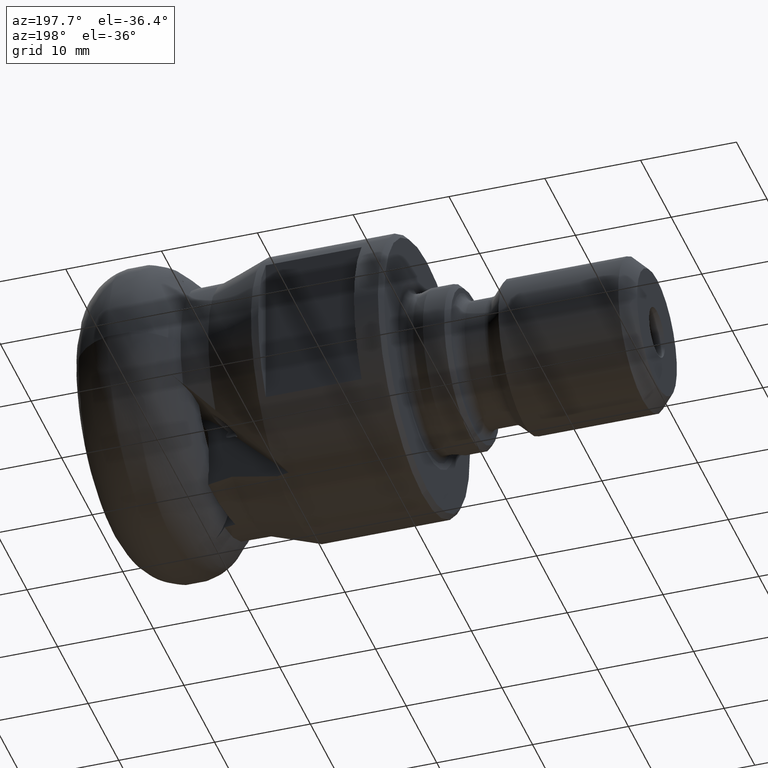
[diagram: clean part render]
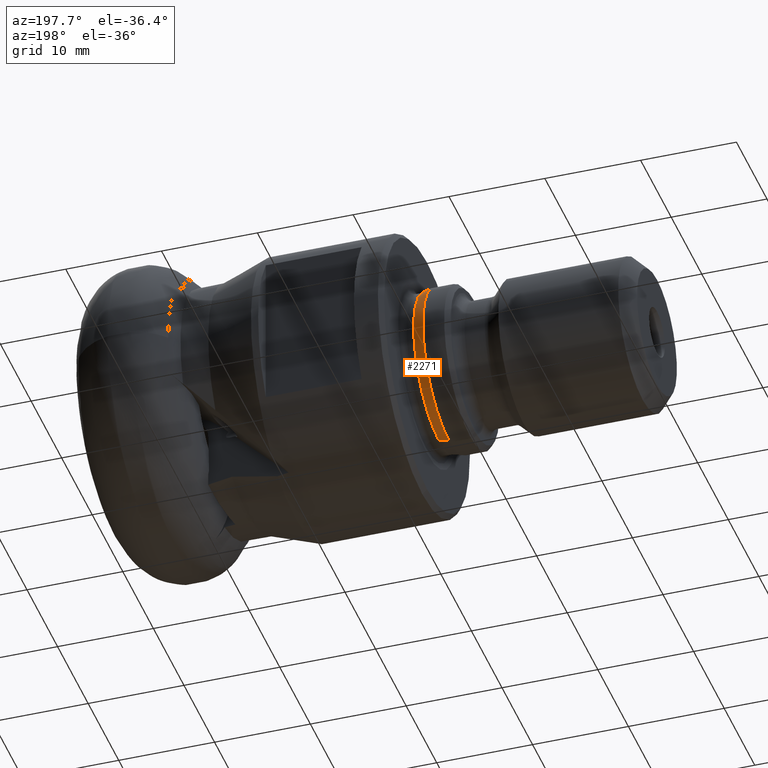
[diagram: same view with one face highlighted and labeled with its STEP entity id]
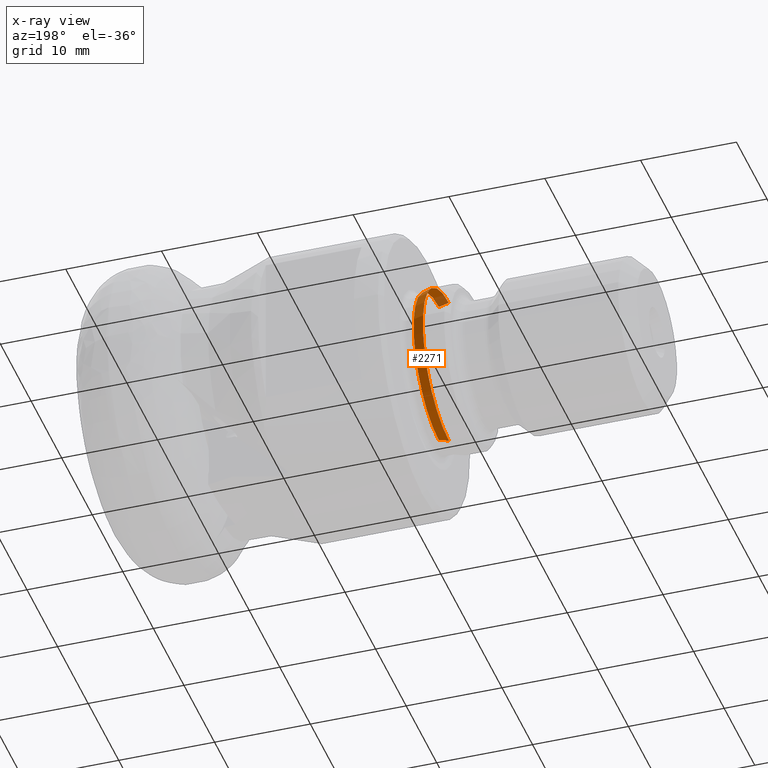
[diagram: x-ray of the same camera — body ghosted, the highlighted face saturated]
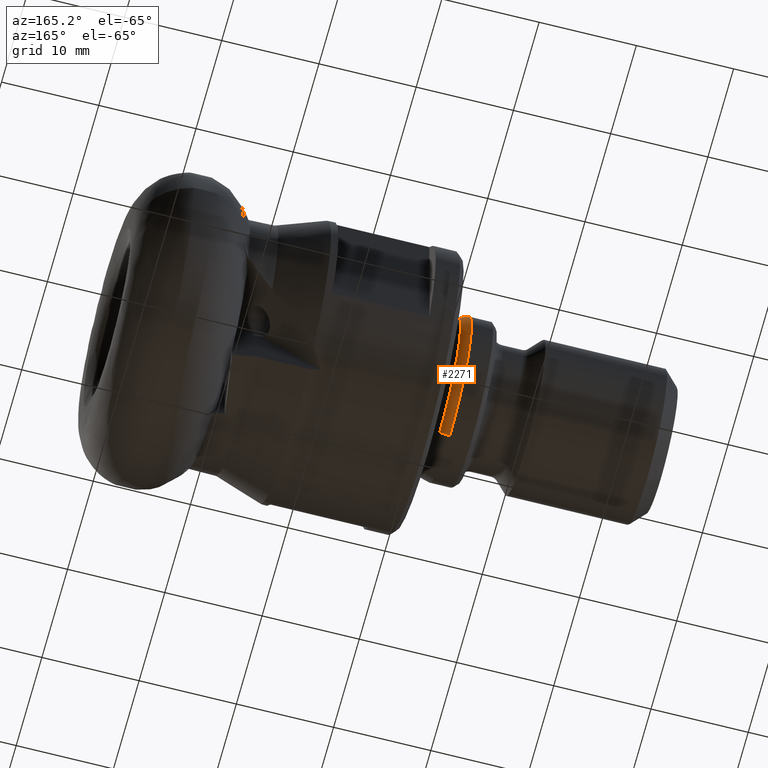
[diagram: same view with one face highlighted and labeled with its STEP entity id]
A machine part, auxiliary view. The second image highlights one B-rep face of the part: STEP entity #2271.
The next image is the same camera in x-ray: the body ghosted, the highlighted face saturated — about 6% of this face is hidden behind the body in this view.
A second angle (auxiliary view) of the same face is appended — the face is thin or edge-on in the first view.
In plain terms, the highlighted conical surface has half-angle 15 deg.
Its self-contained STEP definition (entity closure, byte-faithful):
#52 = EDGE_CURVE ( 'NONE', #4621, #3268, #2274, .T. ) ;
#125 = VECTOR ( 'NONE', #1940, 999.9999999999998900 ) ;
#149 = CIRCLE ( 'NONE', #3133, 8.499999999999994700 ) ;
#153 = DIRECTION ( 'NONE',  ( 1.000000000000000000, -0.0000000000000000000, -0.0000000000000000000 ) ) ;
#307 = CARTESIAN_POINT ( 'NONE',  ( -34.02299303267967900, 0.0000000000000000000, 0.0000000000000000000 ) ) ;
#326 = ORIENTED_EDGE ( 'NONE', *, *, #52, .T. ) ;
#748 = CARTESIAN_POINT ( 'NONE',  ( -32.97967771891809000, 0.0000000000000000000, 0.0000000000000000000 ) ) ;
#762 = DIRECTION ( 'NONE',  ( 0.0000000000000000000, 0.0000000000000000000, 1.000000000000000000 ) ) ;
#819 = CARTESIAN_POINT ( 'NONE',  ( -32.97967771891809000, 0.0000000000000000000, 0.0000000000000000000 ) ) ;
#865 = CARTESIAN_POINT ( 'NONE',  ( -32.97967771891809000, 0.0000000000000000000, 8.220444504226579200 ) ) ;
#952 = VERTEX_POINT ( 'NONE', #4563 ) ;
#1300 = CIRCLE ( 'NONE', #2307, 8.220444504226579200 ) ;
#1379 = AXIS2_PLACEMENT_3D ( 'NONE', #748, #3579, #762 ) ;
#1470 = CARTESIAN_POINT ( 'NONE',  ( -32.97967771891809000, 1.006714104966953000E-015, -8.220444504226579200 ) ) ;
#1571 = DIRECTION ( 'NONE',  ( 0.0000000000000000000, 0.0000000000000000000, -1.000000000000000000 ) ) ;
#1710 = CARTESIAN_POINT ( 'NONE',  ( -34.02299303267967900, 0.0000000000000000000, -8.499999999999994700 ) ) ;
#1940 = DIRECTION ( 'NONE',  ( -0.9659258262890742000, 0.0000000000000000000, 0.2588190451024992000 ) ) ;
#1985 = EDGE_LOOP ( 'NONE', ( #4323, #326, #3117, #3507 ) ) ;
#2157 = EDGE_CURVE ( 'NONE', #3268, #952, #149, .T. ) ;
#2271 = ADVANCED_FACE ( 'NONE', ( #2721 ), #3169, .T. ) ;
#2274 = LINE ( 'NONE', #1470, #3451 ) ;
#2307 = AXIS2_PLACEMENT_3D ( 'NONE', #819, #153, #1571 ) ;
#2394 = CARTESIAN_POINT ( 'NONE',  ( -32.97967771891809000, 1.023831942121101400E-015, -8.220444504226579200 ) ) ;
#2430 = VERTEX_POINT ( 'NONE', #865 ) ;
#2721 = FACE_OUTER_BOUND ( 'NONE', #1985, .T. ) ;
#2814 = DIRECTION ( 'NONE',  ( 1.000000000000000000, -0.0000000000000000000, -0.0000000000000000000 ) ) ;
#3117 = ORIENTED_EDGE ( 'NONE', *, *, #2157, .T. ) ;
#3133 = AXIS2_PLACEMENT_3D ( 'NONE', #307, #2814, #3522 ) ;
#3169 = CONICAL_SURFACE ( 'NONE', #1379, 8.220444504226579200, 0.2617993877991270400 ) ;
#3247 = DIRECTION ( 'NONE',  ( -0.9659258262890742000, 3.169619151431500500E-017, -0.2588190451024992000 ) ) ;
#3268 = VERTEX_POINT ( 'NONE', #1710 ) ;
#3342 = CARTESIAN_POINT ( 'NONE',  ( -32.97967771891809000, 0.0000000000000000000, 8.220444504226579200 ) ) ;
#3451 = VECTOR ( 'NONE', #3247, 999.9999999999998900 ) ;
#3507 = ORIENTED_EDGE ( 'NONE', *, *, #4230, .F. ) ;
#3522 = DIRECTION ( 'NONE',  ( 0.0000000000000000000, 0.0000000000000000000, -1.000000000000000000 ) ) ;
#3579 = DIRECTION ( 'NONE',  ( -1.000000000000000000, 0.0000000000000000000, 0.0000000000000000000 ) ) ;
#3937 = LINE ( 'NONE', #3342, #125 ) ;
#4209 = EDGE_CURVE ( 'NONE', #4621, #2430, #1300, .T. ) ;
#4230 = EDGE_CURVE ( 'NONE', #2430, #952, #3937, .T. ) ;
#4323 = ORIENTED_EDGE ( 'NONE', *, *, #4209, .F. ) ;
#4563 = CARTESIAN_POINT ( 'NONE',  ( -34.02299303267967900, 1.040949779275249700E-015, 8.499999999999994700 ) ) ;
#4621 = VERTEX_POINT ( 'NONE', #2394 ) ;